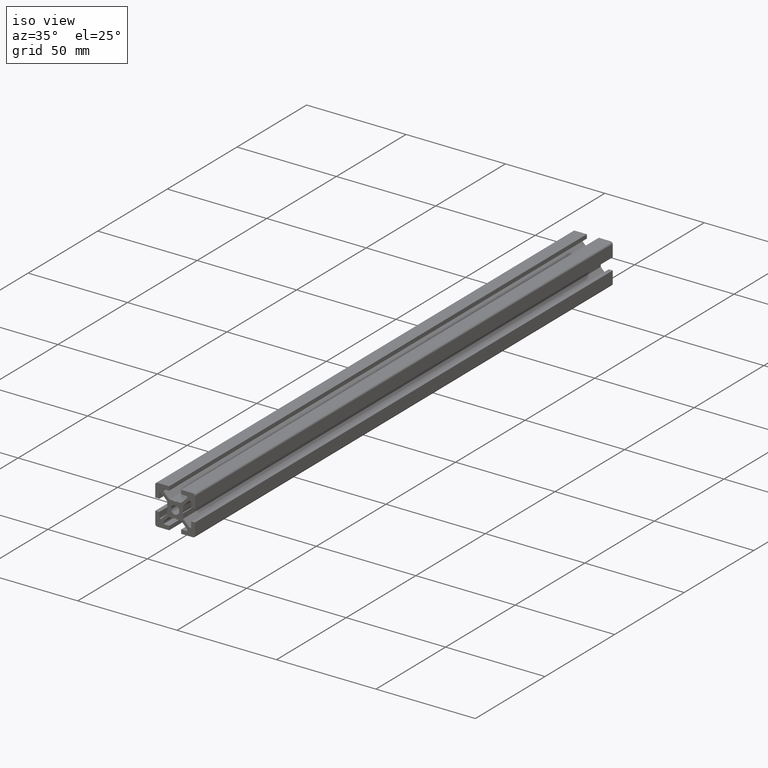
[diagram: clean part render]
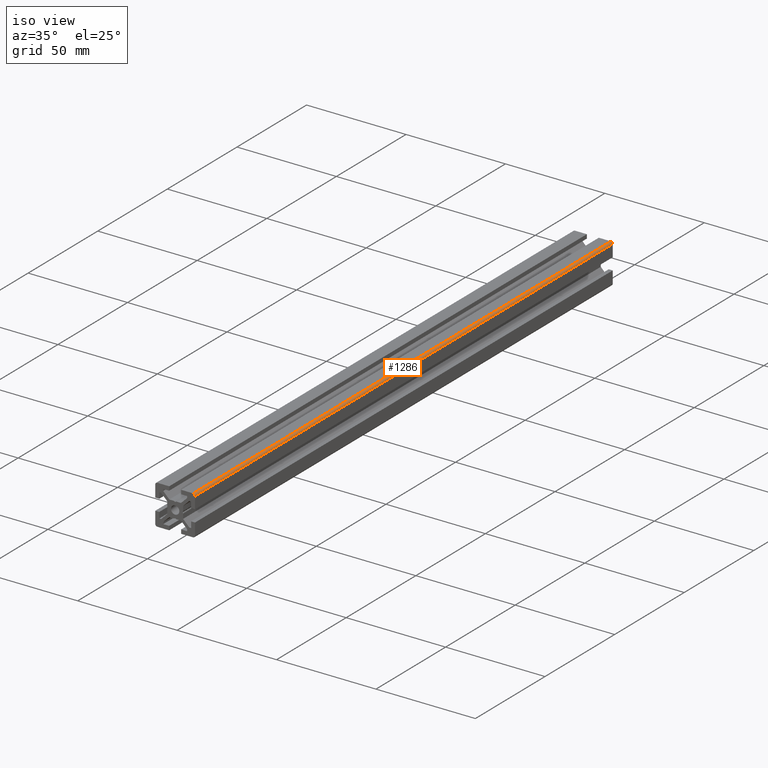
[diagram: same view with one face highlighted and labeled with its STEP entity id]
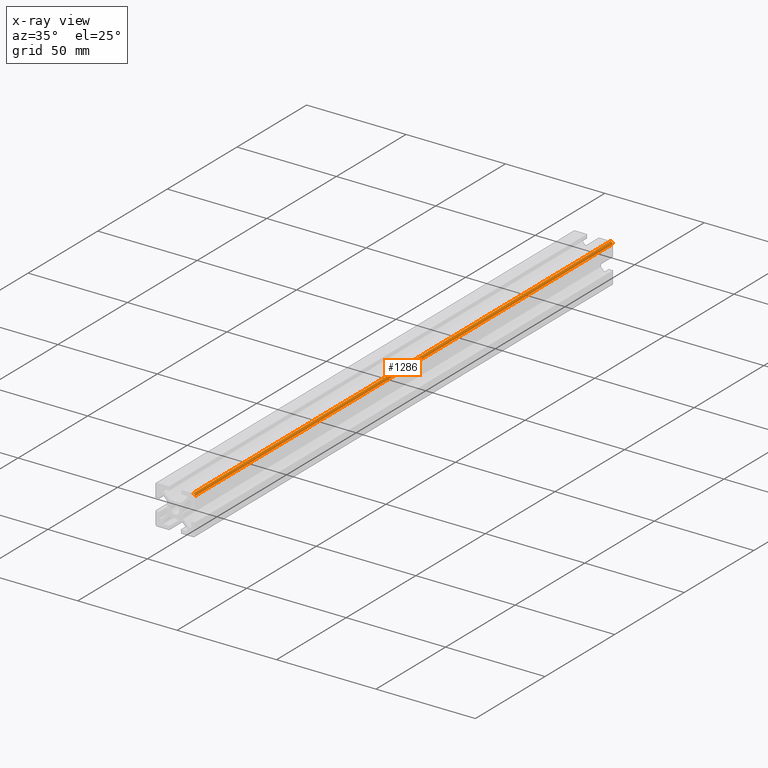
[diagram: x-ray of the same camera — body ghosted, the highlighted face saturated]
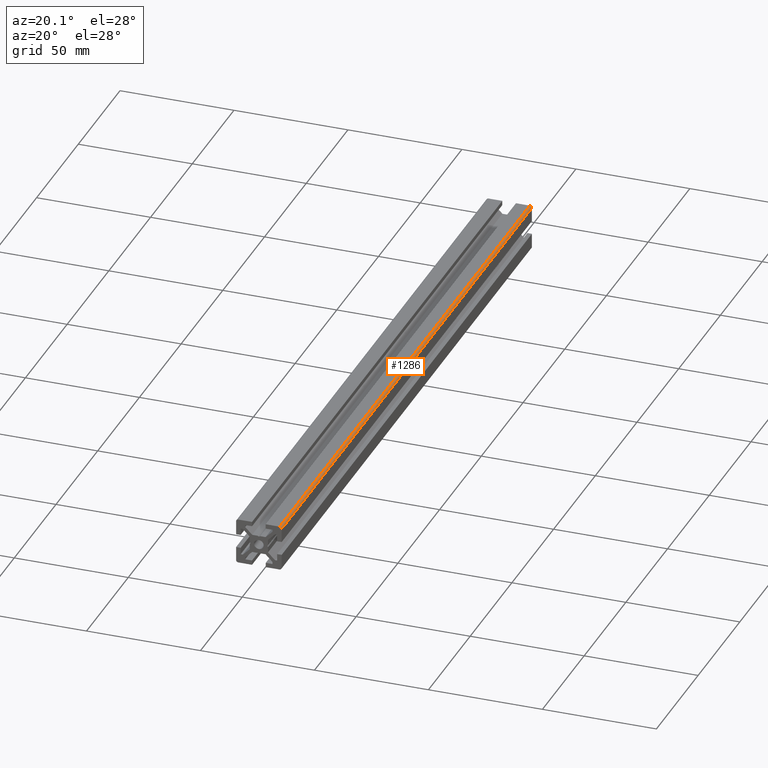
[diagram: same view with one face highlighted and labeled with its STEP entity id]
A machine part, iso view. The second image highlights one B-rep face of the part: STEP entity #1286.
The next image is the same camera in x-ray: the body ghosted, the highlighted face saturated — about 0% of this face is hidden behind the body in this view.
A second angle (auxiliary view) of the same face is appended — the face is thin or edge-on in the first view.
In plain terms, the highlighted cylindrical surface (edge-blend (fillet) strip) has radius 1 mm, axis along (0, 1, -0).
Its self-contained STEP definition (entity closure, byte-faithful):
#22=CYLINDRICAL_SURFACE('',#1372,1.);
#73=FACE_OUTER_BOUND('',#137,.T.);
#137=EDGE_LOOP('',(#1060,#1061,#1062,#1063));
#156=CIRCLE('',#1320,1.);
#162=CIRCLE('',#1373,1.);
#308=LINE('',#2025,#481);
#310=LINE('',#2029,#483);
#481=VECTOR('',#1649,1000.);
#483=VECTOR('',#1653,1000.);
#553=VERTEX_POINT('',#1804);
#554=VERTEX_POINT('',#1806);
#617=VERTEX_POINT('',#2024);
#618=VERTEX_POINT('',#2028);
#675=EDGE_CURVE('',#553,#554,#156,.T.);
#784=EDGE_CURVE('',#554,#617,#308,.T.);
#786=EDGE_CURVE('',#553,#618,#310,.T.);
#787=EDGE_CURVE('',#617,#618,#162,.T.);
#1060=ORIENTED_EDGE('',*,*,#786,.T.);
#1061=ORIENTED_EDGE('',*,*,#787,.F.);
#1062=ORIENTED_EDGE('',*,*,#784,.F.);
#1063=ORIENTED_EDGE('',*,*,#675,.F.);
#1286=ADVANCED_FACE('',(#73),#22,.T.);
#1320=AXIS2_PLACEMENT_3D('',#1807,#1442,#1443);
#1372=AXIS2_PLACEMENT_3D('',#2027,#1651,#1652);
#1373=AXIS2_PLACEMENT_3D('',#2030,#1654,#1655);
#1442=DIRECTION('center_axis',(0.,0.,-1.));
#1443=DIRECTION('ref_axis',(1.,0.,0.));
#1649=DIRECTION('',(0.,0.,1.));
#1651=DIRECTION('center_axis',(0.,0.,1.));
#1652=DIRECTION('ref_axis',(1.,0.,0.));
#1653=DIRECTION('',(0.,0.,1.));
#1654=DIRECTION('center_axis',(0.,0.,1.));
#1655=DIRECTION('ref_axis',(1.,0.,0.));
#1804=CARTESIAN_POINT('',(10.,-2009.,-2280.00000000014));
#1806=CARTESIAN_POINT('',(9.,-2010.,-2280.00000000014));
#1807=CARTESIAN_POINT('Origin',(9.,-2009.,-2280.00000000014));
#2024=CARTESIAN_POINT('',(9.,-2010.,-1980.00000000014));
#2025=CARTESIAN_POINT('',(9.,-2010.,-5980.00000000014));
#2027=CARTESIAN_POINT('Origin',(9.,-2009.,-5980.00000000014));
#2028=CARTESIAN_POINT('',(10.,-2009.,-1980.00000000014));
#2029=CARTESIAN_POINT('',(10.,-2009.,-5980.00000000014));
#2030=CARTESIAN_POINT('Origin',(9.,-2009.,-1980.00000000014));